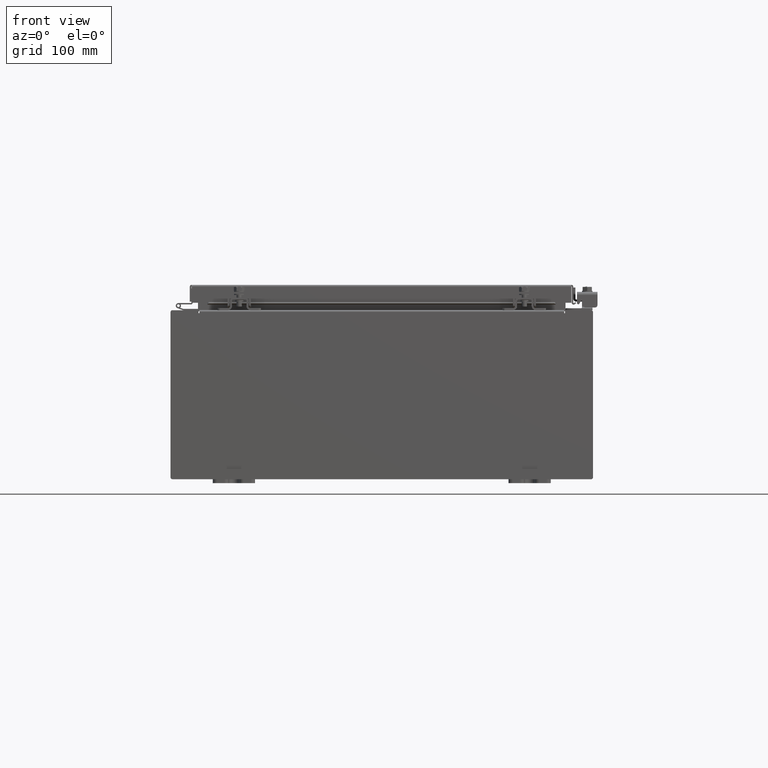
[diagram: clean part render]
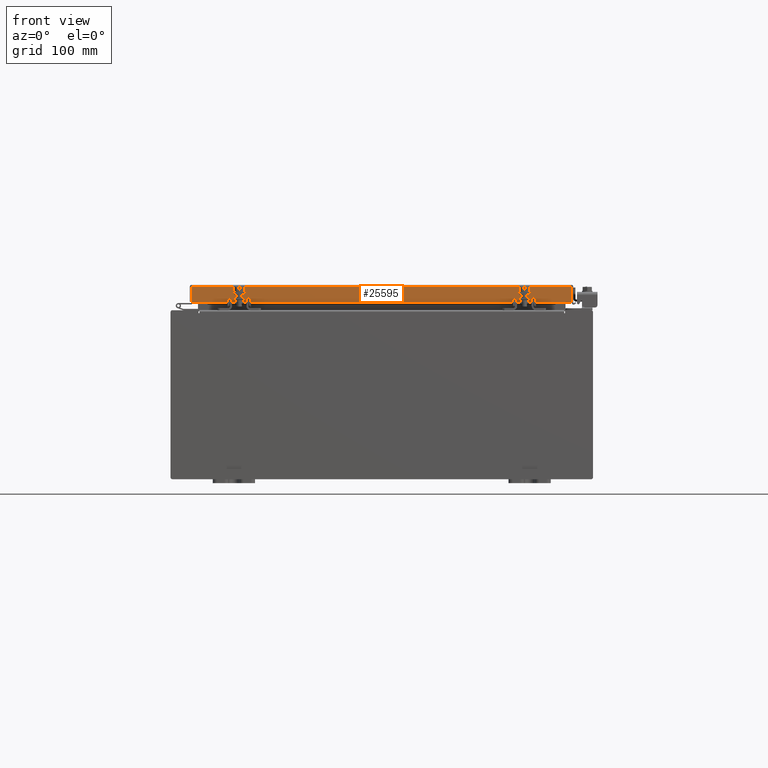
[diagram: same view with one face highlighted and labeled with its STEP entity id]
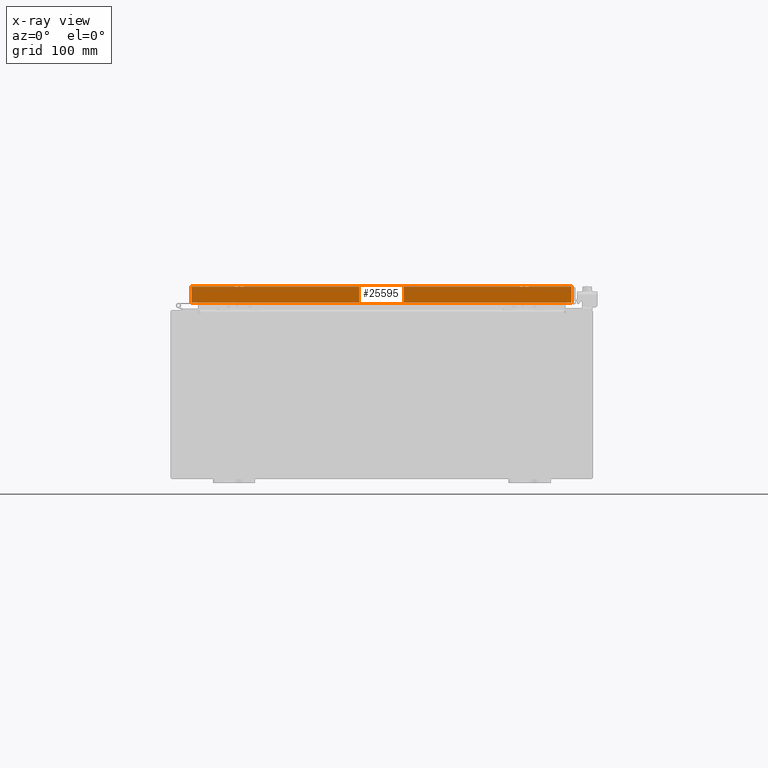
[diagram: x-ray of the same camera — body ghosted, the highlighted face saturated]
A machine part, front view. The second image highlights one B-rep face of the part: STEP entity #25595.
The next image is the same camera in x-ray: the body ghosted, the highlighted face saturated — about 0% of this face is hidden behind the body in this view.
In plain terms, the highlighted planar face has unit normal (-0, 1, -0).
Its self-contained STEP definition (entity closure, byte-faithful):
#11 = LINE ( 'NONE', #7975, #12572 ) ;
#705 = DIRECTION ( 'NONE',  ( -1.000000000000000000, 0.0000000000000000000, 0.0000000000000000000 ) ) ;
#880 = AXIS2_PLACEMENT_3D ( 'NONE', #26646, #11644, #29165 ) ;
#938 = EDGE_CURVE ( 'NONE', #5699, #13626, #17866, .T. ) ;
#2000 = VERTEX_POINT ( 'NONE', #14943 ) ;
#2081 = ORIENTED_EDGE ( 'NONE', *, *, #25384, .F. ) ;
#2851 = VECTOR ( 'NONE', #15612, 39.37007874015748100 ) ;
#4869 = EDGE_CURVE ( 'NONE', #16406, #5699, #11, .T. ) ;
#5629 = ORIENTED_EDGE ( 'NONE', *, *, #31423, .F. ) ;
#5699 = VERTEX_POINT ( 'NONE', #8395 ) ;
#6605 = EDGE_CURVE ( 'NONE', #16406, #25276, #16205, .T. ) ;
#6896 = DIRECTION ( 'NONE',  ( -0.0000000000000000000, -2.818880942772360100E-015, -1.000000000000000000 ) ) ;
#6956 = CARTESIAN_POINT ( 'NONE',  ( 8.989157864376267100, -11.09400000000000100, -0.07469999999999978000 ) ) ;
#7975 = CARTESIAN_POINT ( 'NONE',  ( 9.077999999999999400, -11.09400000000000100, -0.08770000000000007000 ) ) ;
#8173 = VECTOR ( 'NONE', #32392, 39.37007874015748100 ) ;
#8395 = CARTESIAN_POINT ( 'NONE',  ( 8.989157864376267100, -11.09400000000000100, -0.08769999999999897300 ) ) ;
#10409 = VECTOR ( 'NONE', #6896, 39.37007874015748100 ) ;
#10494 = DIRECTION ( 'NONE',  ( 1.000000000000000000, 1.203722403024570700E-016, -1.203722403024570700E-016 ) ) ;
#11644 = DIRECTION ( 'NONE',  ( -1.203722403024574200E-016, 1.000000000000000000, -2.818880942772360100E-015 ) ) ;
#11742 = ORIENTED_EDGE ( 'NONE', *, *, #938, .F. ) ;
#11893 = VECTOR ( 'NONE', #23082, 39.37007874015748100 ) ;
#12572 = VECTOR ( 'NONE', #10494, 39.37007874015748100 ) ;
#13003 = CARTESIAN_POINT ( 'NONE',  ( -8.989157864376267100, -11.09400000000000700, -0.8499999999999975400 ) ) ;
#13626 = VERTEX_POINT ( 'NONE', #20105 ) ;
#14245 = LINE ( 'NONE', #20897, #27535 ) ;
#14943 = CARTESIAN_POINT ( 'NONE',  ( -8.239157864376267100, -11.09399999999999900, -0.8500000000000017500 ) ) ;
#14974 = CARTESIAN_POINT ( 'NONE',  ( 8.239157864376267100, -11.09399999999999900, -0.8500000000000017500 ) ) ;
#15612 = DIRECTION ( 'NONE',  ( 0.0000000000000000000, -2.818880942772360100E-015, -1.000000000000000000 ) ) ;
#16205 = LINE ( 'NONE', #30605, #2851 ) ;
#16406 = VERTEX_POINT ( 'NONE', #31614 ) ;
#17406 = CARTESIAN_POINT ( 'NONE',  ( 9.077999999999999400, -11.09400000000000300, -0.8499999999999996400 ) ) ;
#17866 = LINE ( 'NONE', #6956, #10409 ) ;
#18029 = CARTESIAN_POINT ( 'NONE',  ( 9.077999999999999400, -11.09400000000000300, -0.8499999999999996400 ) ) ;
#18558 = LINE ( 'NONE', #18029, #11893 ) ;
#20105 = CARTESIAN_POINT ( 'NONE',  ( 8.989157864376267100, -11.09400000000000300, -0.8499999999999996400 ) ) ;
#20106 = EDGE_LOOP ( 'NONE', ( #29905, #28469, #5629, #2081, #29894, #11742 ) ) ;
#20897 = CARTESIAN_POINT ( 'NONE',  ( 8.239157864376267100, -11.09399999999999900, -0.8500000000000017500 ) ) ;
#21640 = PLANE ( 'NONE',  #880 ) ;
#23082 = DIRECTION ( 'NONE',  ( -1.000000000000000000, -1.203722403024570700E-016, 1.203722403024570700E-016 ) ) ;
#24204 = EDGE_CURVE ( 'NONE', #13626, #28853, #18558, .T. ) ;
#25276 = VERTEX_POINT ( 'NONE', #13003 ) ;
#25384 = EDGE_CURVE ( 'NONE', #28853, #2000, #14245, .T. ) ;
#25595 = ADVANCED_FACE ( 'NONE', ( #28699 ), #21640, .F. ) ;
#26646 = CARTESIAN_POINT ( 'NONE',  ( 1.335409633915462800E-015, -11.09400000000000100, 3.153347883512815000E-014 ) ) ;
#27375 = LINE ( 'NONE', #17406, #8173 ) ;
#27535 = VECTOR ( 'NONE', #705, 39.37007874015748100 ) ;
#28469 = ORIENTED_EDGE ( 'NONE', *, *, #6605, .T. ) ;
#28699 = FACE_OUTER_BOUND ( 'NONE', #20106, .T. ) ;
#28853 = VERTEX_POINT ( 'NONE', #14974 ) ;
#29165 = DIRECTION ( 'NONE',  ( 0.0000000000000000000, 2.818880942772360100E-015, 1.000000000000000000 ) ) ;
#29894 = ORIENTED_EDGE ( 'NONE', *, *, #24204, .F. ) ;
#29905 = ORIENTED_EDGE ( 'NONE', *, *, #4869, .F. ) ;
#30605 = CARTESIAN_POINT ( 'NONE',  ( -8.989157864376267100, -11.09400000000000100, 3.153347883512815000E-014 ) ) ;
#31423 = EDGE_CURVE ( 'NONE', #2000, #25276, #27375, .T. ) ;
#31614 = CARTESIAN_POINT ( 'NONE',  ( -8.989157864376267100, -11.09400000000000100, -0.08769999999999789100 ) ) ;
#32392 = DIRECTION ( 'NONE',  ( -1.000000000000000000, -1.203722403024570700E-016, 1.203722403024570700E-016 ) ) ;